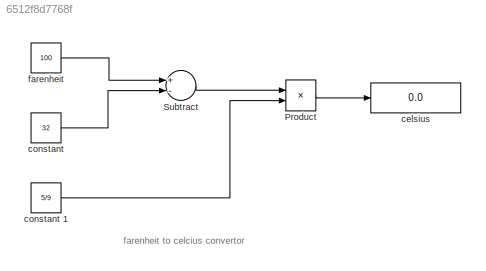
MODEL slx_6512f8d7768f
KIND model
CONFIG AbsTol = auto
CONFIG EnableMultiTasking = off
CONFIG FixedStep = auto
CONFIG MaxStep = auto
CONFIG MinStep = auto
CONFIG RelTol = 1e-3
CONFIG SampleTimeConstraint = Unconstrained
CONFIG Solver = VariableStepAuto
CONFIG SolverName = VariableStepAuto
CONFIG StartTime = 0.0
CONFIG StopTime = 18
BLOCK [Product] Product
  InputSameDT = off
  OutDataTypeStr = Inherit: Inherit via internal rule
  Ports = [2, 1]
  RndMeth = Floor
  SaturateOnIntegerOverflow = off
BLOCK [Sum] Subtract
  InputSameDT = off
  Inputs = +-
  OutDataTypeStr = Inherit: Inherit via internal rule
  Ports = [2, 1]
  SaturateOnIntegerOverflow = off
BLOCK [Display] celsius 
  Decimation = 1
  Ports = [1]
BLOCK [Constant] constant 
  Value = 32
BLOCK [Constant] constant 1
  Value = 5/9
BLOCK [Constant] farenheit
  Value = 100
ANNOTATION (root): farenheit to celcius convertor
LINE Product:1 -> celsius :1
LINE Subtract:1 -> Product:1
LINE constant 1:1 -> Product:2
LINE constant :1 -> Subtract:2
LINE farenheit:1 -> Subtract:1
